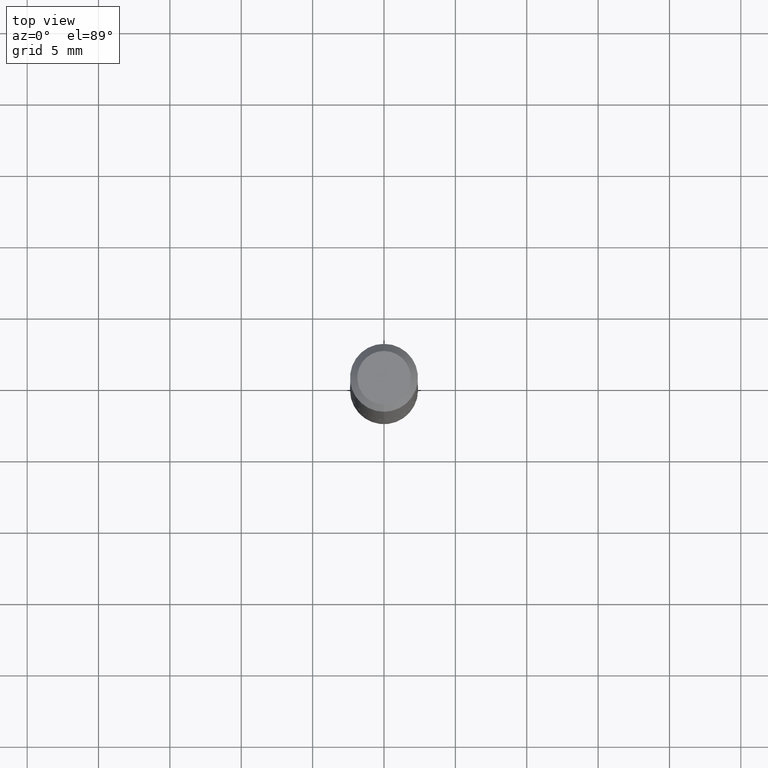
[diagram: clean part render]
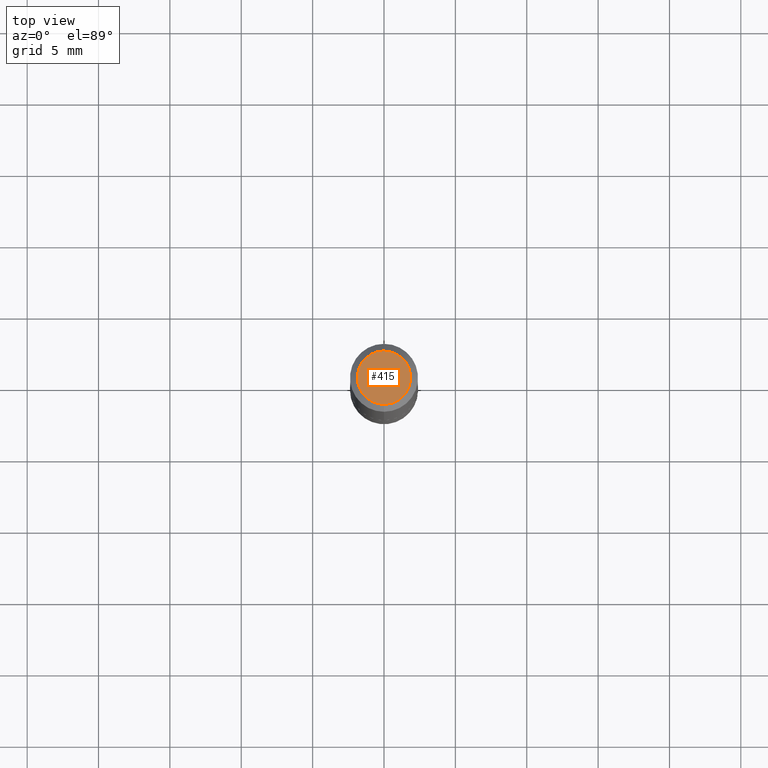
[diagram: same view with one face highlighted and labeled with its STEP entity id]
A machine part, top view. The second image highlights one B-rep face of the part: STEP entity #415.
In plain terms, the highlighted planar face has unit normal (0, -0, -1).
Its self-contained STEP definition (entity closure, byte-faithful):
#15 = ORIENTED_EDGE ( 'NONE', *, *, #61, .T. ) ;
#35 = CARTESIAN_POINT ( 'NONE',  ( 1.879681562415174393E-45, -2.683195866887273789E-31, -7.685682941324603213E-17 ) ) ;
#61 = EDGE_CURVE ( 'NONE', #202, #280, #80, .T. ) ;
#67 = CARTESIAN_POINT ( 'NONE',  ( 1.879681562415174393E-45, -2.683195866887273789E-31, -7.685682941324603213E-17 ) ) ;
#73 = EDGE_CURVE ( 'NONE', #280, #202, #130, .T. ) ;
#76 = ORIENTED_EDGE ( 'NONE', *, *, #73, .T. ) ;
#80 = CIRCLE ( 'NONE', #350, 0.07375000000000013489 ) ;
#82 = PLANE ( 'NONE',  #110 ) ;
#85 = DIRECTION ( 'NONE',  ( 6.982962677686265922E-15, 1.000000000000000000, -3.491161276586350254E-15 ) ) ;
#110 = AXIS2_PLACEMENT_3D ( 'NONE', #306, #184, #85 ) ;
#130 = CIRCLE ( 'NONE', #367, 0.07375000000000013489 ) ;
#133 = DIRECTION ( 'NONE',  ( -6.982962677686265922E-15, -1.000000000000000000, 3.491161276586350254E-15 ) ) ;
#135 = CARTESIAN_POINT ( 'NONE',  ( -5.745667073133659498E-16, -0.07375000000000013489, 1.806163147349977463E-16 ) ) ;
#160 = CARTESIAN_POINT ( 'NONE',  ( 5.848231242562254878E-16, 0.07375000000000013489, -3.343299735614898105E-16 ) ) ;
#184 = DIRECTION ( 'NONE',  ( 2.445692304464510111E-29, -3.491161276586350254E-15, -1.000000000000000000 ) ) ;
#197 = DIRECTION ( 'NONE',  ( -6.982962677686265922E-15, -1.000000000000000000, 3.491161276586350254E-15 ) ) ;
#202 = VERTEX_POINT ( 'NONE', #160 ) ;
#280 = VERTEX_POINT ( 'NONE', #135 ) ;
#284 = EDGE_LOOP ( 'NONE', ( #15, #76 ) ) ;
#306 = CARTESIAN_POINT ( 'NONE',  ( 5.149934974793630771E-16, 0.07375000000000013489, -2.959015588548668315E-16 ) ) ;
#336 = FACE_OUTER_BOUND ( 'NONE', #284, .T. ) ;
#350 = AXIS2_PLACEMENT_3D ( 'NONE', #35, #381, #197 ) ;
#361 = DIRECTION ( 'NONE',  ( -2.445692304464510391E-29, 3.491161276586350254E-15, 1.000000000000000000 ) ) ;
#367 = AXIS2_PLACEMENT_3D ( 'NONE', #67, #361, #133 ) ;
#381 = DIRECTION ( 'NONE',  ( -2.445692304464510391E-29, 3.491161276586350254E-15, 1.000000000000000000 ) ) ;
#415 = ADVANCED_FACE ( 'NONE', ( #336 ), #82, .F. ) ;